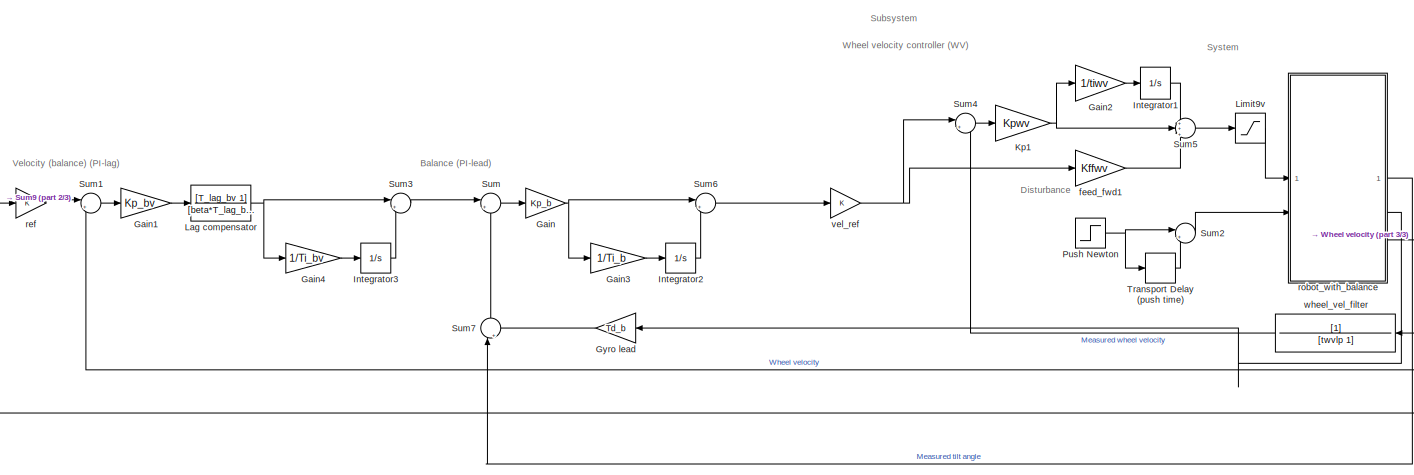
[diagram: root canvas - part 1/3, center side, full height]
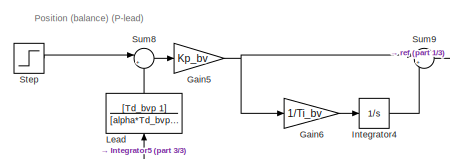
[diagram: root canvas - part 2/3, middle left region]
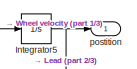
[diagram: root canvas - part 3/3, middle right region]
MODEL slx_9c4bd07311bd
KIND model
CONFIG AbsTol = auto
CONFIG EnableMultiTasking = on
CONFIG FixedStep = auto
CONFIG MaxStep = 0.001
CONFIG MinStep = auto
CONFIG RelTol = 1e-3
CONFIG SampleTimeConstraint = Unconstrained
CONFIG SolverName = ode15s
CONFIG StartTime = 0.0
CONFIG StopTime = 10
BLOCK [Gain] Gain
  Gain = Kp_b
BLOCK [Gain] Gain1
  Gain = Kp_bv
BLOCK [Gain] Gain2
  Gain = 1/tiwv
BLOCK [Gain] Gain3
  Gain = 1/Ti_b
BLOCK [Gain] Gain4
  Gain = 1/Ti_bv
BLOCK [Gain] Gain5
  Gain = Kp_bv
BLOCK [Gain] Gain6
  Gain = 1/Ti_bv
BLOCK [Gain] Gyro lead
  Gain = Td_b
  NameLocation = top
BLOCK [Integrator] Integrator1
  LimitOutput = on
  LowerSaturationLimit = -3
  UpperSaturationLimit = 3
BLOCK [Integrator] Integrator2
BLOCK [Integrator] Integrator3
  LimitOutput = on
  LowerSaturationLimit = -0.0698
  UpperSaturationLimit = 0.0698
BLOCK [Integrator] Integrator4
  LimitOutput = on
  LowerSaturationLimit = -0.0698
  UpperSaturationLimit = 0.0698
BLOCK [Integrator] Integrator5
BLOCK [Gain] Kp1
  Gain = Kpwv
BLOCK [TransferFcn] Lag compensator
  Denominator = [beta*T_lag_bv 1]
  Numerator = [T_lag_bv 1]
BLOCK [TransferFcn] Lead
  Denominator = [alpha*Td_bvp 1]
  NameLocation = right
  Numerator = [Td_bvp 1]
BLOCK [Saturate] Limit9v
  LowerLimit = -9
  UpperLimit = 9
BLOCK [Step] Push Newton
  SampleTime = 0
BLOCK [Step] Step
  SampleTime = 0
  Time = 0.2
BLOCK [Sum] Sum
  Inputs = |+-
BLOCK [Sum] Sum1
  Inputs = |+-
BLOCK [Sum] Sum2
  Inputs = |+-
BLOCK [Sum] Sum3
  Inputs = |++
BLOCK [Sum] Sum4
  Inputs = |+-
BLOCK [Sum] Sum5
  Inputs = ++|+
BLOCK [Sum] Sum6
  Inputs = |++
BLOCK [Sum] Sum7
  Inputs = |++
  NameLocation = left
BLOCK [Sum] Sum8
  Inputs = |+-
BLOCK [Sum] Sum9
  Inputs = |++
BLOCK [TransportDelay] Transport Delay (push time)
  DelayTime = 0.1
BLOCK [Gain] feed_fwd1
  Gain = Kffwv
  NameLocation = top
BLOCK [Outport] postition
  VectorParamsAs1DForOutWhenUnconnected = off
BLOCK [Gain] ref
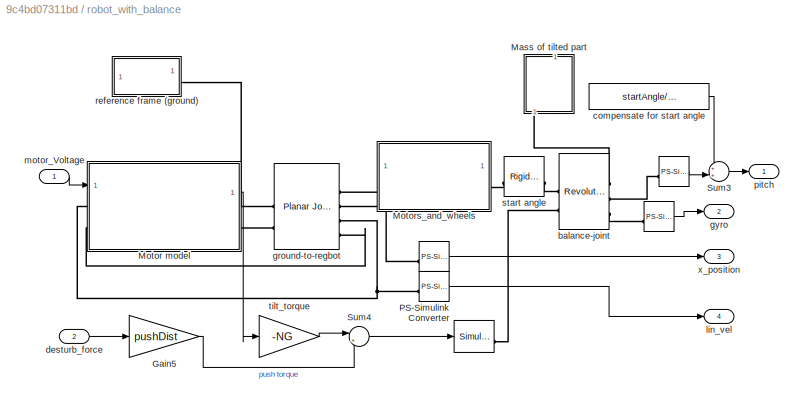
BLOCK [SubSystem] robot_with_balance
BLOCK [Reference] robot_with_balance/   REF=nesl_utility/PS-Simulink
Converter
  NameLocation = top
  SourceBlock = nesl_utility/PS-Simulink\nConverter
  SourceType = PS-Simulink\nConverter
BLOCK [Reference] robot_with_balance/    REF=nesl_utility/PS-Simulink
Converter
  SourceBlock = nesl_utility/PS-Simulink\nConverter
  SourceType = PS-Simulink\nConverter
BLOCK [Reference] robot_with_balance/     REF=nesl_utility/Simulink-PS
Converter
  SourceBlock = nesl_utility/Simulink-PS\nConverter
  SourceType = Simulink-PS\nConverter
BLOCK [Reference] robot_with_balance/       REF=nesl_utility/PS-Simulink
Converter
  NameLocation = top
  SourceBlock = nesl_utility/PS-Simulink\nConverter
  SourceType = PS-Simulink\nConverter
BLOCK [Gain] robot_with_balance/Gain5
  Gain = pushDist
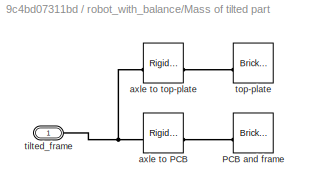
BLOCK [SubSystem] robot_with_balance/Mass of tilted part
  NameLocation = left
BLOCK [Reference] robot_with_balance/Mass of tilted part/PCB and frame  REF=sm_lib/Body Elements/Brick Solid
  NameLocation = top
  SourceBlock = sm_lib/Body Elements/Brick Solid
  SourceType = Brick Solid
BLOCK [Reference] robot_with_balance/Mass of tilted part/axle to PCB  REF=sm_lib/Frames and
Transforms/Rigid
Transform
  SourceBlock = sm_lib/Frames and\nTransforms/Rigid\nTransform
  SourceType = Rigid\nTransform
BLOCK [Reference] robot_with_balance/Mass of tilted part/axle to top-plate  REF=sm_lib/Frames and
Transforms/Rigid
Transform
  SourceBlock = sm_lib/Frames and\nTransforms/Rigid\nTransform
  SourceType = Rigid\nTransform
BLOCK [PMIOPort] robot_with_balance/Mass of tilted part/tilted_frame
  Side = Left
BLOCK [Reference] robot_with_balance/Mass of tilted part/top-plate  REF=sm_lib/Body Elements/Brick Solid
  NameLocation = top
  SourceBlock = sm_lib/Body Elements/Brick Solid
  SourceType = Brick Solid
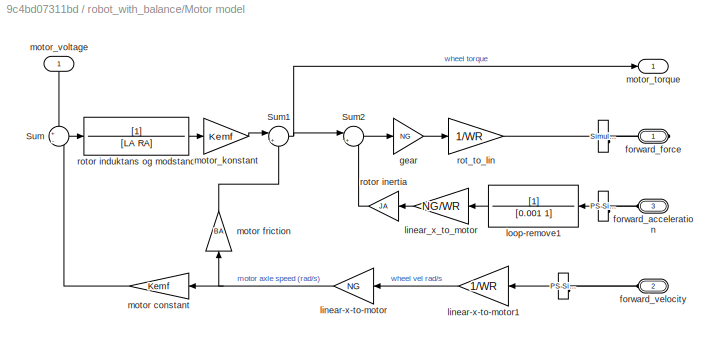
BLOCK [SubSystem] robot_with_balance/Motor model
BLOCK [Reference] robot_with_balance/Motor model/   REF=nesl_utility/Simulink-PS
Converter
  NameLocation = top
  SourceBlock = nesl_utility/Simulink-PS\nConverter
  SourceType = Simulink-PS\nConverter
BLOCK [Reference] robot_with_balance/Motor model/     REF=nesl_utility/PS-Simulink
Converter
  NameLocation = top
  SourceBlock = nesl_utility/PS-Simulink\nConverter
  SourceType = PS-Simulink\nConverter
BLOCK [Reference] robot_with_balance/Motor model/       REF=nesl_utility/PS-Simulink
Converter
  NameLocation = top
  SourceBlock = nesl_utility/PS-Simulink\nConverter
  SourceType = PS-Simulink\nConverter
BLOCK [Sum] robot_with_balance/Motor model/Sum
  Inputs = +|-
BLOCK [Sum] robot_with_balance/Motor model/Sum1
  Inputs = |+-
BLOCK [Sum] robot_with_balance/Motor model/Sum2
  Inputs = |+-
BLOCK [PMIOPort] robot_with_balance/Motor model/forward_acceleration
  NameLocation = top
  Port = 3
  Side = Left
BLOCK [PMIOPort] robot_with_balance/Motor model/forward_force
  Side = Right
BLOCK [PMIOPort] robot_with_balance/Motor model/forward_velocity
  NameLocation = top
  Port = 2
  Side = Left
BLOCK [Gain] robot_with_balance/Motor model/gear
  Gain = NG
  NameLocation = top
BLOCK [Gain] robot_with_balance/Motor model/linear-x-to-motor
  Gain = NG
  NameLocation = top
BLOCK [Gain] robot_with_balance/Motor model/linear-x-to-motor1
  Gain = 1/WR
  NameLocation = top
BLOCK [Gain] robot_with_balance/Motor model/linear_x_to_motor
  Gain = NG/WR
  NameLocation = top
BLOCK [TransferFcn] robot_with_balance/Motor model/loop-remove1
  Denominator = [0.001 1]
BLOCK [Gain] robot_with_balance/Motor model/motor constant
  Gain = Kemf
  NameLocation = top
BLOCK [Gain] robot_with_balance/Motor model/motor friction
  Gain = BA
  NameLocation = right
BLOCK [Gain] robot_with_balance/Motor model/motor_konstant
  Gain = Kemf
  NameLocation = top
BLOCK [Outport] robot_with_balance/Motor model/motor_torque
  VectorParamsAs1DForOutWhenUnconnected = off
BLOCK [Inport] robot_with_balance/Motor model/motor_voltage
  NameLocation = right
BLOCK [Gain] robot_with_balance/Motor model/rot_to_lin
  Gain = 1/WR
  NameLocation = top
BLOCK [TransferFcn] robot_with_balance/Motor model/rotor induktans og modstand
  Denominator = [LA RA]
BLOCK [Gain] robot_with_balance/Motor model/rotor inertia
  Gain = JA
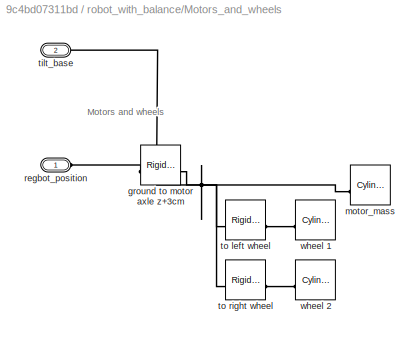
BLOCK [SubSystem] robot_with_balance/Motors_and_wheels
  NameLocation = top
BLOCK [Reference] robot_with_balance/Motors_and_wheels/ground to motor axle z+3cm  REF=sm_lib/Frames and
Transforms/Rigid
Transform
  SourceBlock = sm_lib/Frames and\nTransforms/Rigid\nTransform
  SourceType = Rigid\nTransform
BLOCK [Reference] robot_with_balance/Motors_and_wheels/motor_mass  REF=sm_lib/Body Elements/Cylindrical Solid
  NameLocation = top
  SourceBlock = sm_lib/Body Elements/Cylindrical Solid
  SourceType = Cylindrical Solid
BLOCK [PMIOPort] robot_with_balance/Motors_and_wheels/regbot_position
  Side = Left
BLOCK [PMIOPort] robot_with_balance/Motors_and_wheels/tilt_base
  Port = 2
  Side = Right
BLOCK [Reference] robot_with_balance/Motors_and_wheels/to left wheel  REF=sm_lib/Frames and
Transforms/Rigid
Transform
  SourceBlock = sm_lib/Frames and\nTransforms/Rigid\nTransform
  SourceType = Rigid\nTransform
BLOCK [Reference] robot_with_balance/Motors_and_wheels/to right wheel  REF=sm_lib/Frames and
Transforms/Rigid
Transform
  SourceBlock = sm_lib/Frames and\nTransforms/Rigid\nTransform
  SourceType = Rigid\nTransform
BLOCK [Reference] robot_with_balance/Motors_and_wheels/wheel 1  REF=sm_lib/Body Elements/Cylindrical Solid
  NameLocation = top
  SourceBlock = sm_lib/Body Elements/Cylindrical Solid
  SourceType = Cylindrical Solid
BLOCK [Reference] robot_with_balance/Motors_and_wheels/wheel 2  REF=sm_lib/Body Elements/Cylindrical Solid
  NameLocation = top
  SourceBlock = sm_lib/Body Elements/Cylindrical Solid
  SourceType = Cylindrical Solid
BLOCK [Reference] robot_with_balance/PS-Simulink Converter  REF=nesl_utility/PS-Simulink
Converter
  SourceBlock = nesl_utility/PS-Simulink\nConverter
  SourceType = PS-Simulink\nConverter
BLOCK [Sum] robot_with_balance/Sum3
  Inputs = ++|
BLOCK [Sum] robot_with_balance/Sum4
  Inputs = |++
BLOCK [Reference] robot_with_balance/balance-joint  REF=sm_lib/Joints/Revolute Joint
  NameLocation = top
  SourceBlock = sm_lib/Joints/Revolute Joint
  SourceType = Revolute Joint
BLOCK [Constant] robot_with_balance/compensate for start angle
  NameLocation = top
  Value = startAngle/180*pi
BLOCK [Inport] robot_with_balance/desturb_force
  Port = 2
BLOCK [Reference] robot_with_balance/ground-to-regbot  REF=sm_lib/Joints/Planar Joint
  NameLocation = top
  SourceBlock = sm_lib/Joints/Planar Joint
  SourceType = Planar Joint
BLOCK [Outport] robot_with_balance/gyro
  Port = 2
  VectorParamsAs1DForOutWhenUnconnected = off
BLOCK [Outport] robot_with_balance/lin_vel
  Port = 4
  VectorParamsAs1DForOutWhenUnconnected = off
BLOCK [Inport] robot_with_balance/motor_Voltage
  NameLocation = top
BLOCK [Outport] robot_with_balance/pitch
  VectorParamsAs1DForOutWhenUnconnected = off
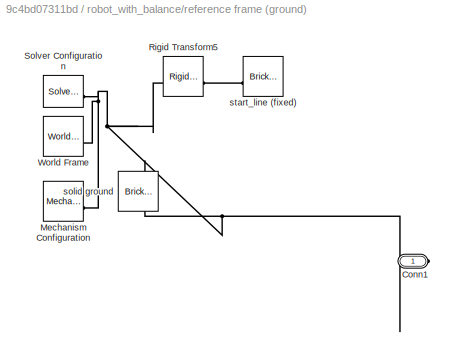
BLOCK [SubSystem] robot_with_balance/reference frame (ground)
BLOCK [PMIOPort] robot_with_balance/reference frame (ground)/Conn1
  Side = Right
BLOCK [Reference] robot_with_balance/reference frame (ground)/Mechanism Configuration  REF=sm_lib/Utilities/Mechanism
Configuration
  SourceBlock = sm_lib/Utilities/Mechanism\nConfiguration
  SourceType = Mechanism\nConfiguration
BLOCK [Reference] robot_with_balance/reference frame (ground)/Rigid Transform5  REF=sm_lib/Frames and
Transforms/Rigid
Transform
  SourceBlock = sm_lib/Frames and\nTransforms/Rigid\nTransform
  SourceType = Rigid\nTransform
BLOCK [Reference] robot_with_balance/reference frame (ground)/Solver Configuration  REF=nesl_utility/Solver
Configuration
  NameLocation = top
  SourceBlock = nesl_utility/Solver\nConfiguration
  SourceType = Solver\nConfiguration
BLOCK [Reference] robot_with_balance/reference frame (ground)/World Frame  REF=sm_lib/Frames and
Transforms/World Frame
  SourceBlock = sm_lib/Frames and\nTransforms/World Frame
  SourceType = World Frame
BLOCK [Reference] robot_with_balance/reference frame (ground)/solid ground  REF=sm_lib/Body Elements/Brick Solid
  NameLocation = right
  SourceBlock = sm_lib/Body Elements/Brick Solid
  SourceType = Brick Solid
BLOCK [Reference] robot_with_balance/reference frame (ground)/start_line (fixed)  REF=sm_lib/Body Elements/Brick Solid
  NameLocation = top
  SourceBlock = sm_lib/Body Elements/Brick Solid
  SourceType = Brick Solid
BLOCK [Reference] robot_with_balance/start angle  REF=sm_lib/Frames and
Transforms/Rigid
Transform
  SourceBlock = sm_lib/Frames and\nTransforms/Rigid\nTransform
  SourceType = Rigid\nTransform
BLOCK [Gain] robot_with_balance/tilt_torque
  Gain = -NG
  NameLocation = top
BLOCK [Outport] robot_with_balance/x_position
  Port = 3
  VectorParamsAs1DForOutWhenUnconnected = off
BLOCK [Gain] vel_ref
BLOCK [TransferFcn] wheel_vel_filter
  Denominator = [twvlp 1]
ANNOTATION (root): Balance (PI-lead)
ANNOTATION (root): Disturbance
ANNOTATION (root): Position (balance) (P-lead)
ANNOTATION (root): Subsystem
ANNOTATION (root): System
ANNOTATION (root): Velocity (balance) (PI-lag)
ANNOTATION (root): Wheel velocity controller (WV)
ANNOTATION robot_with_balance/Motors_and_wheels: Motors and wheels
LINE Gain1:1 -> Lag compensator:1
LINE Gain2:1 -> Integrator1:1
LINE Gain3:1 -> Integrator2:1
LINE Gain4:1 -> Integrator3:1
NET Gain5:1 -> Gain6:1, Sum9:1
LINE Gain6:1 -> Integrator4:1
NET Gain:1 -> Gain3:1, Sum6:1
LINE Gyro lead:1 -> Sum7:2
LINE Integrator1:1 -> Sum5:1
LINE Integrator2:1 -> Sum6:2
LINE Integrator3:1 -> Sum3:2
LINE Integrator4:1 -> Sum9:2
NET Integrator5:1 -> Lead:1, postition:1
NET Kp1:1 -> Gain2:1, Sum5:2
NET Lag compensator:1 -> Gain4:1, Sum3:1
LINE Lead:1 -> Sum8:2
LINE Limit9v:1 -> robot_with_balance:1
NET Push Newton:1 -> Sum2:1, Transport Delay (push time):1
LINE Step:1 -> Sum8:1
LINE Sum1:1 -> Gain1:1
LINE Sum2:1 -> robot_with_balance:2
LINE Sum3:1 -> Sum:1
LINE Sum4:1 -> Kp1:1
LINE Sum5:1 -> Limit9v:1
LINE Sum6:1 -> vel_ref:1
LINE Sum7:1 -> Sum:2
LINE Sum8:1 -> Gain5:1
LINE Sum9:1 -> ref:1
LINE Sum:1 -> Gain:1
LINE Transport Delay (push time):1 -> Sum2:2
LINE feed_fwd1:1 -> Sum5:3
LINE ref:1 -> Sum1:1
LINE robot_with_balance/     :1 -> robot_with_balance/x_position:1
LINE robot_with_balance/  :1 -> robot_with_balance/Sum3:2
LINE robot_with_balance/ :1 -> robot_with_balance/gyro:1
LINE robot_with_balance/Gain5:1 -> robot_with_balance/Sum4:2
LINE robot_with_balance/Motor model/     :1 -> robot_with_balance/Motor model/linear-x-to-motor1:1
LINE robot_with_balance/Motor model/   :1 -> robot_with_balance/Motor model/loop-remove1:1
NET robot_with_balance/Motor model/Sum1:1 -> robot_with_balance/Motor model/Sum2:1, robot_with_balance/Motor model/motor_torque:1
LINE robot_with_balance/Motor model/Sum2:1 -> robot_with_balance/Motor model/gear:1
LINE robot_with_balance/Motor model/Sum:1 -> robot_with_balance/Motor model/rotor induktans og modstand:1
LINE robot_with_balance/Motor model/gear:1 -> robot_with_balance/Motor model/rot_to_lin:1
LINE robot_with_balance/Motor model/linear-x-to-motor1:1 -> robot_with_balance/Motor model/linear-x-to-motor:1
NET robot_with_balance/Motor model/linear-x-to-motor:1 -> robot_with_balance/Motor model/motor constant:1, robot_with_balance/Motor model/motor friction:1
LINE robot_with_balance/Motor model/linear_x_to_motor:1 -> robot_with_balance/Motor model/rotor inertia:1
LINE robot_with_balance/Motor model/loop-remove1:1 -> robot_with_balance/Motor model/linear_x_to_motor:1
LINE robot_with_balance/Motor model/motor constant:1 -> robot_with_balance/Motor model/Sum:2
LINE robot_with_balance/Motor model/motor friction:1 -> robot_with_balance/Motor model/Sum1:2
LINE robot_with_balance/Motor model/motor_konstant:1 -> robot_with_balance/Motor model/Sum1:1
LINE robot_with_balance/Motor model/motor_voltage:1 -> robot_with_balance/Motor model/Sum:1
LINE robot_with_balance/Motor model/rot_to_lin:1 -> robot_with_balance/Motor model/ :1
LINE robot_with_balance/Motor model/rotor induktans og modstand:1 -> robot_with_balance/Motor model/motor_konstant:1
LINE robot_with_balance/Motor model/rotor inertia:1 -> robot_with_balance/Motor model/Sum2:2
LINE robot_with_balance/Motor model:1 -> robot_with_balance/tilt_torque:1
LINE robot_with_balance/PS-Simulink Converter:1 -> robot_with_balance/lin_vel:1
LINE robot_with_balance/Sum3:1 -> robot_with_balance/pitch:1
LINE robot_with_balance/Sum4:1 -> robot_with_balance/   :1
LINE robot_with_balance/compensate for start angle:1 -> robot_with_balance/Sum3:1
LINE robot_with_balance/desturb_force:1 -> robot_with_balance/Gain5:1
LINE robot_with_balance/motor_Voltage:1 -> robot_with_balance/Motor model:1
LINE robot_with_balance/tilt_torque:1 -> robot_with_balance/Sum4:1
LINE robot_with_balance:1 -> Sum7:1
LINE robot_with_balance:2 -> Gyro lead:1
NET robot_with_balance:4 -> Integrator5:1, Sum1:2, wheel_vel_filter:1
NET vel_ref:1 -> Sum4:1, feed_fwd1:1
LINE wheel_vel_filter:1 -> Sum4:2
PLINE robot_with_balance/     :LConn1 -- robot_with_balance/ground-to-regbot:RConn2
PLINE robot_with_balance/   :RConn1 -- robot_with_balance/balance-joint:LConn2
PLINE robot_with_balance/  :LConn1 -- robot_with_balance/balance-joint:RConn2
PLINE robot_with_balance/ :LConn1 -- robot_with_balance/balance-joint:RConn3
PLINE robot_with_balance/Mass of tilted part/PCB and frame:RConn1 -- robot_with_balance/Mass of tilted part/axle to PCB:RConn1
PNET net1: robot_with_balance/Mass of tilted part/axle to PCB:LConn1 -- robot_with_balance/Mass of tilted part/axle to top-plate:LConn1 -- robot_with_balance/Mass of tilted part/tilted_frame:RConn1
PLINE robot_with_balance/Mass of tilted part/axle to top-plate:RConn1 -- robot_with_balance/Mass of tilted part/top-plate:RConn1
PLINE robot_with_balance/Mass of tilted part:LConn1 -- robot_with_balance/balance-joint:RConn1
PLINE robot_with_balance/Motor model/     :LConn1 -- robot_with_balance/Motor model/forward_velocity:RConn1
PLINE robot_with_balance/Motor model/   :LConn1 -- robot_with_balance/Motor model/forward_acceleration:RConn1
PLINE robot_with_balance/Motor model/ :RConn1 -- robot_with_balance/Motor model/forward_force:RConn1
PNET net2: robot_with_balance/Motor model:LConn1 -- robot_with_balance/PS-Simulink Converter:LConn1 -- robot_with_balance/ground-to-regbot:RConn3
PLINE robot_with_balance/Motor model:LConn2 -- robot_with_balance/ground-to-regbot:RConn4
PLINE robot_with_balance/Motor model:RConn1 -- robot_with_balance/ground-to-regbot:LConn2
PLINE robot_with_balance/Motors_and_wheels/ground to motor axle z+3cm:LConn1 -- robot_with_balance/Motors_and_wheels/regbot_position:RConn1
PNET net3: robot_with_balance/Motors_and_wheels/ground to motor axle z+3cm:RConn1 -- robot_with_balance/Motors_and_wheels/motor_mass:RConn1 -- robot_with_balance/Motors_and_wheels/tilt_base:RConn1 -- robot_with_balance/Motors_and_wheels/to left wheel:LConn1 -- robot_with_balance/Motors_and_wheels/to right wheel:LConn1
PLINE robot_with_balance/Motors_and_wheels/to left wheel:RConn1 -- robot_with_balance/Motors_and_wheels/wheel 1:RConn1
PLINE robot_with_balance/Motors_and_wheels/to right wheel:RConn1 -- robot_with_balance/Motors_and_wheels/wheel 2:RConn1
PLINE robot_with_balance/Motors_and_wheels:LConn1 -- robot_with_balance/ground-to-regbot:RConn1
PLINE robot_with_balance/Motors_and_wheels:RConn1 -- robot_with_balance/start angle:LConn1
PLINE robot_with_balance/balance-joint:LConn1 -- robot_with_balance/start angle:RConn1
PLINE robot_with_balance/ground-to-regbot:LConn1 -- robot_with_balance/reference frame (ground):RConn1
PNET net4: robot_with_balance/reference frame (ground)/Conn1:RConn1 -- robot_with_balance/reference frame (ground)/Mechanism Configuration:RConn1 -- robot_with_balance/reference frame (ground)/Rigid Transform5:LConn1 -- robot_with_balance/reference frame (ground)/Solver Configuration:RConn1 -- robot_with_balance/reference frame (ground)/World Frame:RConn1 -- robot_with_balance/reference frame (ground)/solid ground:RConn1
PLINE robot_with_balance/reference frame (ground)/Rigid Transform5:RConn1 -- robot_with_balance/reference frame (ground)/start_line (fixed):RConn1
note: NET lines group one-source signal fan-out (src -> all destinations, sorted); 1:1 wires keep LINE; PNET lines group multi-terminal physical nets as a canonical sorted terminal list (undirected conserving connections); 2-terminal nets keep the pairwise PLINE form
